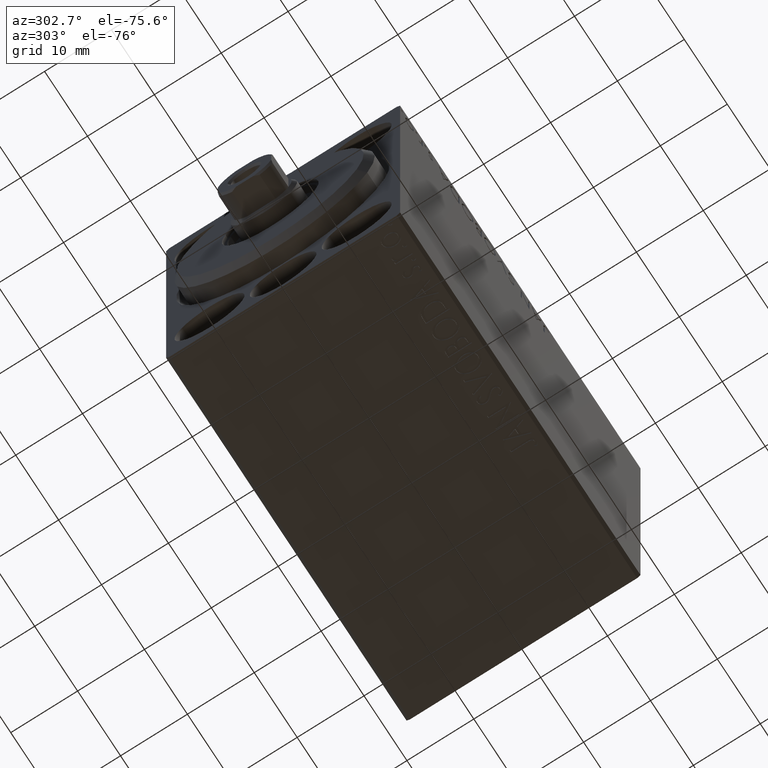
[diagram: clean part render]
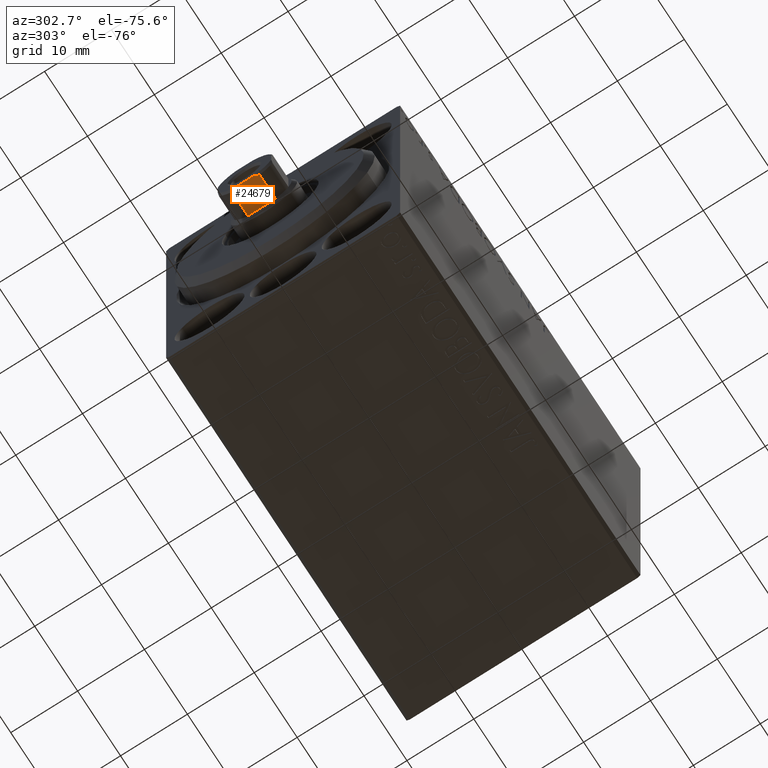
[diagram: same view with one face highlighted and labeled with its STEP entity id]
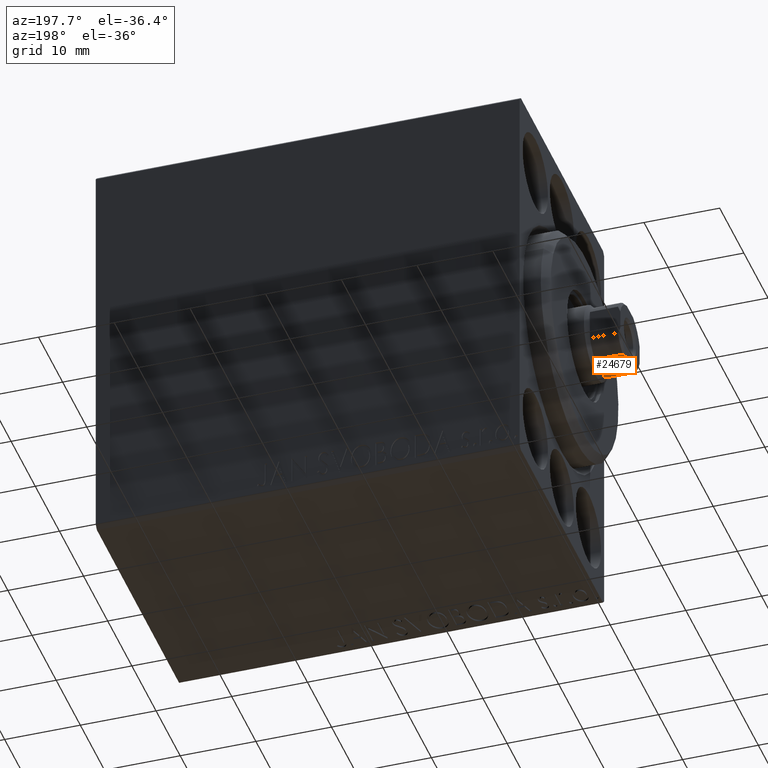
[diagram: same view with one face highlighted and labeled with its STEP entity id]
A machine part, auxiliary view. The second image highlights one B-rep face of the part: STEP entity #24679.
A second angle (auxiliary view) of the same face is appended — the face is thin or edge-on in the first view.
In plain terms, the highlighted planar face has unit normal (0, 0, 1).
Its self-contained STEP definition (entity closure, byte-faithful):
#1710 = VECTOR ( 'NONE', #40118, 1000.000000000000000 ) ;
#2648 = VERTEX_POINT ( 'NONE', #16715 ) ;
#2744 = CARTESIAN_POINT ( 'NONE',  ( -4.000000000000001776, -1.807533033248849508, 59.81637226468021851 ) ) ;
#3273 = ORIENTED_EDGE ( 'NONE', *, *, #16938, .F. ) ;
#3318 = DIRECTION ( 'NONE',  ( -0.000000000000000000, -0.000000000000000000, 1.000000000000000000 ) ) ;
#4018 = VERTEX_POINT ( 'NONE', #12655 ) ;
#5010 = VECTOR ( 'NONE', #3318, 1000.000000000000000 ) ;
#7966 = CARTESIAN_POINT ( 'NONE',  ( -4.000000000000000888, 2.061552812808827628, 59.69999999999998863 ) ) ;
#8127 = DIRECTION ( 'NONE',  ( -1.084202172485504434E-16, 1.000000000000000000, 0.000000000000000000 ) ) ;
#8172 = ORIENTED_EDGE ( 'NONE', *, *, #16988, .T. ) ;
#8586 = VECTOR ( 'NONE', #24374, 1000.000000000000000 ) ;
#8979 = ORIENTED_EDGE ( 'NONE', *, *, #25827, .T. ) ;
#11068 = CARTESIAN_POINT ( 'NONE',  ( -3.999999999999999112, 1.807533033248847953, 59.81637226468021140 ) ) ;
#12356 = B_SPLINE_CURVE_WITH_KNOTS ( 'NONE', 3,
 ( #35990, #2744, #12945, #26469 ),
 .UNSPECIFIED., .F., .F.,
 ( 4, 4 ),
 ( 0.000000000000000000, 0.0008365694753111088374 ),
 .UNSPECIFIED. ) ;
#12655 = CARTESIAN_POINT ( 'NONE',  ( -4.000000000000000888, 2.061552812808827628, 59.69999999999998863 ) ) ;
#12945 = CARTESIAN_POINT ( 'NONE',  ( -3.999999999999998224, -1.548028007149124363, 59.91846592129517290 ) ) ;
#13561 = VERTEX_POINT ( 'NONE', #38654 ) ;
#13846 = DIRECTION ( 'NONE',  ( 1.084202172485504434E-16, -1.000000000000000000, 0.000000000000000000 ) ) ;
#15216 = CARTESIAN_POINT ( 'NONE',  ( -3.999999999999999112, 3.999999999999998224, 60.00000000000000000 ) ) ;
#15492 = EDGE_CURVE ( 'NONE', #21134, #40432, #12356, .T. ) ;
#16409 = LINE ( 'NONE', #19305, #5010 ) ;
#16715 = CARTESIAN_POINT ( 'NONE',  ( -4.000000000000000888, -2.061552812808826296, 56.00000000000002132 ) ) ;
#16938 = EDGE_CURVE ( 'NONE', #13561, #40432, #41425, .T. ) ;
#16988 = EDGE_CURVE ( 'NONE', #13561, #4018, #27026, .T. ) ;
#17000 = ORIENTED_EDGE ( 'NONE', *, *, #33629, .F. ) ;
#19078 = VECTOR ( 'NONE', #13846, 1000.000000000000000 ) ;
#19305 = CARTESIAN_POINT ( 'NONE',  ( -4.000000000000000888, 2.061552812808827628, -0.001000000000001000089 ) ) ;
#19965 = CARTESIAN_POINT ( 'NONE',  ( -4.000000000000001776, -2.061552812808826740, -0.001000000000001000089 ) ) ;
#20361 = EDGE_LOOP ( 'NONE', ( #28665, #40946, #3273, #8172, #17000, #8979 ) ) ;
#20573 = CARTESIAN_POINT ( 'NONE',  ( -4.000000000000001776, -2.061552812808826740, 59.70000000000000995 ) ) ;
#21134 = VERTEX_POINT ( 'NONE', #20573 ) ;
#21862 = PLANE ( 'NONE',  #35306 ) ;
#24374 = DIRECTION ( 'NONE',  ( 1.084202172485504434E-16, -1.000000000000000000, 0.000000000000000000 ) ) ;
#24596 = CARTESIAN_POINT ( 'NONE',  ( -3.999999999999999112, -1.280624847486601103, 60.00000000000000000 ) ) ;
#24679 = ADVANCED_FACE ( 'NONE', ( #42693 ), #21862, .F. ) ;
#25827 = EDGE_CURVE ( 'NONE', #42505, #2648, #37559, .T. ) ;
#26469 = CARTESIAN_POINT ( 'NONE',  ( -3.999999999999999112, -1.280624847486601103, 60.00000000000000000 ) ) ;
#26616 = LINE ( 'NONE', #19965, #1710 ) ;
#27026 = B_SPLINE_CURVE_WITH_KNOTS ( 'NONE', 3,
 ( #34787, #34556, #11068, #7966 ),
 .UNSPECIFIED., .F., .F.,
 ( 4, 4 ),
 ( 0.000000000000000000, 0.0008365694753111259678 ),
 .UNSPECIFIED. ) ;
#28036 = CARTESIAN_POINT ( 'NONE',  ( -3.999999999999999112, 3.999999999999998224, 56.00000000000000000 ) ) ;
#28665 = ORIENTED_EDGE ( 'NONE', *, *, #43163, .T. ) ;
#33150 = CARTESIAN_POINT ( 'NONE',  ( -4.000000000000000888, 2.061552812808826740, 56.00000000000002132 ) ) ;
#33629 = EDGE_CURVE ( 'NONE', #42505, #4018, #16409, .T. ) ;
#34556 = CARTESIAN_POINT ( 'NONE',  ( -3.999999999999999112, 1.548028007149119922, 59.91846592129516580 ) ) ;
#34787 = CARTESIAN_POINT ( 'NONE',  ( -3.999999999999999112, 1.280624847486591555, 60.00000000000000000 ) ) ;
#35306 = AXIS2_PLACEMENT_3D ( 'NONE', #15216, #38705, #8127 ) ;
#35990 = CARTESIAN_POINT ( 'NONE',  ( -4.000000000000001776, -2.061552812808826740, 59.70000000000000995 ) ) ;
#37559 = LINE ( 'NONE', #28036, #19078 ) ;
#38099 = CARTESIAN_POINT ( 'NONE',  ( -3.999999999999999112, 3.999999999999998224, 60.00000000000000000 ) ) ;
#38654 = CARTESIAN_POINT ( 'NONE',  ( -3.999999999999999112, 1.280624847486591555, 60.00000000000000000 ) ) ;
#38705 = DIRECTION ( 'NONE',  ( 1.000000000000000000, 1.084202172485504434E-16, -0.000000000000000000 ) ) ;
#40118 = DIRECTION ( 'NONE',  ( -0.000000000000000000, -0.000000000000000000, 1.000000000000000000 ) ) ;
#40432 = VERTEX_POINT ( 'NONE', #24596 ) ;
#40946 = ORIENTED_EDGE ( 'NONE', *, *, #15492, .T. ) ;
#41425 = LINE ( 'NONE', #38099, #8586 ) ;
#42505 = VERTEX_POINT ( 'NONE', #33150 ) ;
#42693 = FACE_OUTER_BOUND ( 'NONE', #20361, .T. ) ;
#43163 = EDGE_CURVE ( 'NONE', #2648, #21134, #26616, .T. ) ;